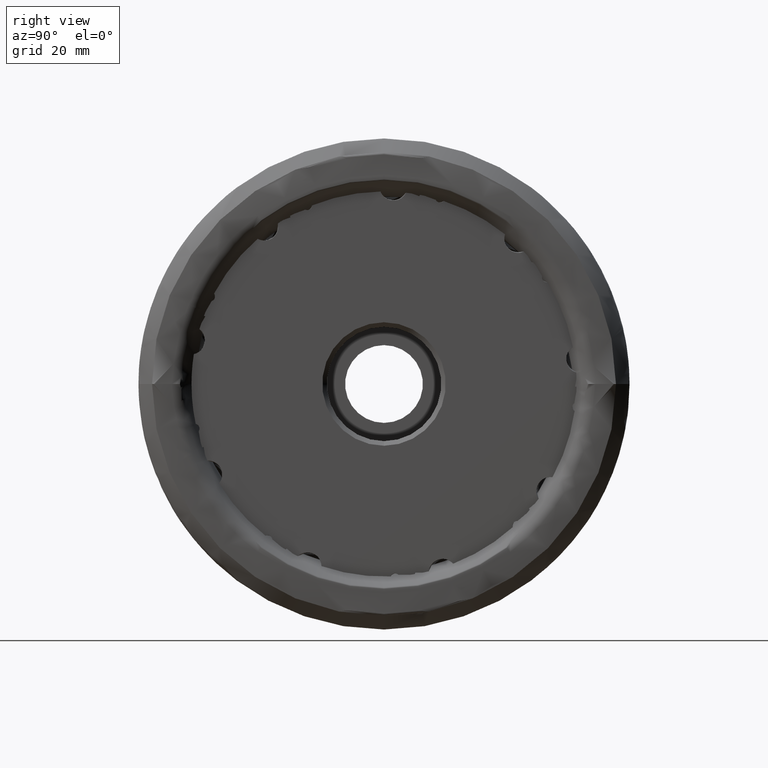
[diagram: clean part render]
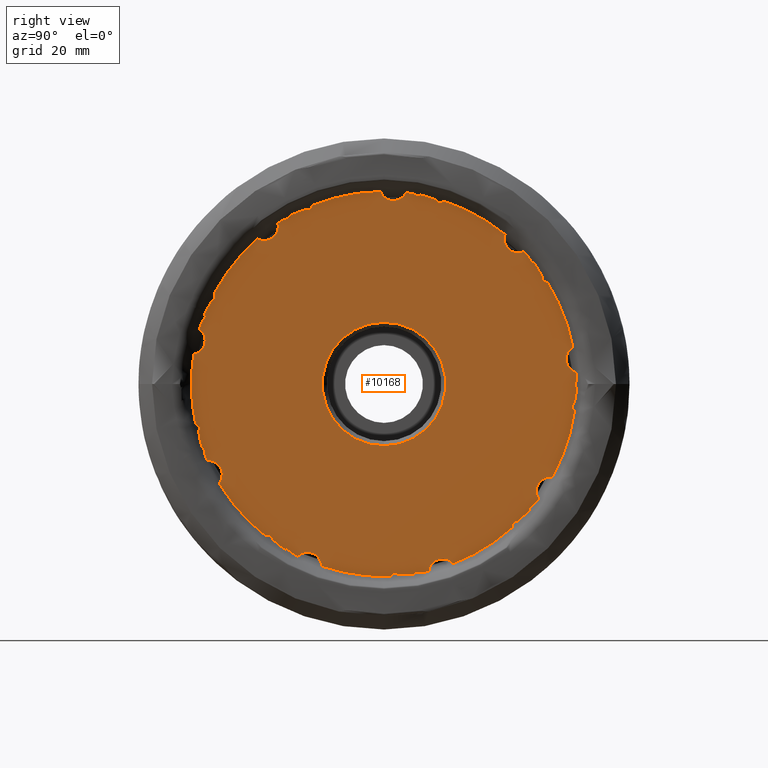
[diagram: same view with one face highlighted and labeled with its STEP entity id]
A machine part, right view. The second image highlights one B-rep face of the part: STEP entity #10168.
In plain terms, the highlighted planar face has unit normal (-1, 0, 0).
Its self-contained STEP definition (entity closure, byte-faithful):
#58 = CARTESIAN_POINT ( 'NONE',  ( -2.000000000000174500, 33.80282391461082600, -25.06373193778975100 ) ) ;
#110 = EDGE_CURVE ( 'NONE', #11343, #9593, #13274, .T. ) ;
#147 = CIRCLE ( 'NONE', #12850, 42.08113072686592200 ) ;
#186 = CARTESIAN_POINT ( 'NONE',  ( -1.999999999999998200, -2.225506086701896500E-015, 0.0000000000000000000 ) ) ;
#208 = CARTESIAN_POINT ( 'NONE',  ( -1.999999999999992200, 34.72131134795173300, -25.29057403848168700 ) ) ;
#212 = CARTESIAN_POINT ( 'NONE',  ( -1.999999999999993100, -16.44272710679563700, 37.75781978297396800 ) ) ;
#253 = AXIS2_PLACEMENT_3D ( 'NONE', #9820, #1645, #11186 ) ;
#259 = VERTEX_POINT ( 'NONE', #16211 ) ;
#269 = CARTESIAN_POINT ( 'NONE',  ( -1.999999999984755700, -37.14504883660652000, 19.77541175749989900 ) ) ;
#272 = CARTESIAN_POINT ( 'NONE',  ( -1.999999999999988000, -23.09905746324097800, 34.37552707122336700 ) ) ;
#304 = VERTEX_POINT ( 'NONE', #17643 ) ;
#347 = ORIENTED_EDGE ( 'NONE', *, *, #6846, .F. ) ;
#370 = ORIENTED_EDGE ( 'NONE', *, *, #7165, .F. ) ;
#435 = VERTEX_POINT ( 'NONE', #8789 ) ;
#451 = LINE ( 'NONE', #3659, #10947 ) ;
#476 = ORIENTED_EDGE ( 'NONE', *, *, #12536, .T. ) ;
#477 = VERTEX_POINT ( 'NONE', #1860 ) ;
#503 = LINE ( 'NONE', #8462, #961 ) ;
#515 = DIRECTION ( 'NONE',  ( 0.0000000000000000000, 0.7660444431189771300, 0.6427876096865404700 ) ) ;
#516 = DIRECTION ( 'NONE',  ( -1.236699284938157500E-016, 1.000000000000000000, -1.776356839400250500E-015 ) ) ;
#520 = CARTESIAN_POINT ( 'NONE',  ( -1.999999999999992700, 1.653273178848926700E-015, 13.49999999999999800 ) ) ;
#524 = VERTEX_POINT ( 'NONE', #4251 ) ;
#539 = DIRECTION ( 'NONE',  ( -1.236699284938157500E-016, 1.000000000000000000, 0.0000000000000000000 ) ) ;
#540 = EDGE_CURVE ( 'NONE', #16962, #12831, #1627, .T. ) ;
#543 = CARTESIAN_POINT ( 'NONE',  ( -1.999999999999991300, -25.21314977678311600, -32.73243151228509600 ) ) ;
#557 = LINE ( 'NONE', #1055, #7861 ) ;
#631 = CARTESIAN_POINT ( 'NONE',  ( -1.999999999999998200, -2.225506086701896500E-015, 0.0000000000000000000 ) ) ;
#690 = VERTEX_POINT ( 'NONE', #16309 ) ;
#717 = CARTESIAN_POINT ( 'NONE',  ( -1.999999999999998200, -2.225506086701896500E-015, 0.0000000000000000000 ) ) ;
#767 = DIRECTION ( 'NONE',  ( -1.236699284938157500E-016, 1.000000000000000000, -7.727152251391089500E-014 ) ) ;
#779 = ORIENTED_EDGE ( 'NONE', *, *, #9050, .F. ) ;
#812 = EDGE_CURVE ( 'NONE', #2190, #3810, #3178, .T. ) ;
#905 = EDGE_CURVE ( 'NONE', #3678, #10430, #15474, .T. ) ;
#939 = VERTEX_POINT ( 'NONE', #10562 ) ;
#958 = CARTESIAN_POINT ( 'NONE',  ( -1.999999999987449400, -23.19196300464737300, 35.11345063139542300 ) ) ;
#961 = VECTOR ( 'NONE', #16828, 1000.000000000000000 ) ;
#976 = VECTOR ( 'NONE', #515, 1000.000000000000200 ) ;
#1003 = VERTEX_POINT ( 'NONE', #2128 ) ;
#1055 = CARTESIAN_POINT ( 'NONE',  ( -1.999999999999992200, -18.87706094944759600, -38.58547870414682300 ) ) ;
#1064 = DIRECTION ( 'NONE',  ( -1.000000000000000000, -1.193693284822026100E-016, 0.0000000000000000000 ) ) ;
#1074 = CARTESIAN_POINT ( 'NONE',  ( -1.999999999999994000, -39.93233878044627300, 13.27516036721388200 ) ) ;
#1086 = CARTESIAN_POINT ( 'NONE',  ( -1.999999999999988000, 10.08867232349782700, -37.84135278247864400 ) ) ;
#1094 = LINE ( 'NONE', #14449, #4810 ) ;
#1132 = EDGE_CURVE ( 'NONE', #2653, #6702, #14298, .T. ) ;
#1176 = CIRCLE ( 'NONE', #2999, 42.08113072686592200 ) ;
#1183 = LINE ( 'NONE', #17493, #8022 ) ;
#1213 = DIRECTION ( 'NONE',  ( 0.0000000000000000000, -0.1736481776669404600, 0.9848077530122062400 ) ) ;
#1230 = CARTESIAN_POINT ( 'NONE',  ( -1.999999999999998200, -2.225506086701896500E-015, 0.0000000000000000000 ) ) ;
#1250 = DIRECTION ( 'NONE',  ( -1.236699284938157500E-016, 1.000000000000000000, 0.0000000000000000000 ) ) ;
#1267 = CARTESIAN_POINT ( 'NONE',  ( -1.999999999984755700, -37.14504883660652000, 19.77541175749989900 ) ) ;
#1315 = VERTEX_POINT ( 'NONE', #9077 ) ;
#1330 = CIRCLE ( 'NONE', #7123, 42.08113072686592200 ) ;
#1336 = DIRECTION ( 'NONE',  ( -1.236699284938157500E-016, 1.000000000000000000, 0.0000000000000000000 ) ) ;
#1372 = EDGE_CURVE ( 'NONE', #10640, #477, #1176, .T. ) ;
#1479 = AXIS2_PLACEMENT_3D ( 'NONE', #15843, #7722, #17222 ) ;
#1491 = CARTESIAN_POINT ( 'NONE',  ( -1.999999999999993600, -40.06745422894155700, -12.86159690175575100 ) ) ;
#1567 = ORIENTED_EDGE ( 'NONE', *, *, #13143, .F. ) ;
#1613 = EDGE_CURVE ( 'NONE', #16238, #2076, #16932, .T. ) ;
#1624 = ORIENTED_EDGE ( 'NONE', *, *, #16855, .F. ) ;
#1627 = LINE ( 'NONE', #7596, #15680 ) ;
#1645 = DIRECTION ( 'NONE',  ( 1.000000000000000000, -0.0000000000000000000, -0.0000000000000000000 ) ) ;
#1681 = CARTESIAN_POINT ( 'NONE',  ( -1.999999999999988000, 29.32358529761255600, 28.67203722557644200 ) ) ;
#1685 = CARTESIAN_POINT ( 'NONE',  ( -1.999999999999988000, -23.09905746324097800, 31.78128646541152200 ) ) ;
#1697 = CARTESIAN_POINT ( 'NONE',  ( -1.999999999986959800, 4.804416614470191000, 41.80597019860930900 ) ) ;
#1732 = VERTEX_POINT ( 'NONE', #11444 ) ;
#1753 = EDGE_CURVE ( 'NONE', #14994, #12203, #8753, .T. ) ;
#1765 = CARTESIAN_POINT ( 'NONE',  ( -1.999999999999988000, 3.462253966382804500, 39.00976912429983700 ) ) ;
#1785 = ORIENTED_EDGE ( 'NONE', *, *, #13038, .F. ) ;
#1812 = CIRCLE ( 'NONE', #10737, 13.49999999999999800 ) ;
#1835 = DIRECTION ( 'NONE',  ( 0.0000000000000000000, 1.000000000000000000, -0.0000000000000000000 ) ) ;
#1856 = AXIS2_PLACEMENT_3D ( 'NONE', #16877, #8729, #516 ) ;
#1860 = CARTESIAN_POINT ( 'NONE',  ( -2.000000000000003100, 41.30267919462586700, 8.056690052211209300 ) ) ;
#1901 = CARTESIAN_POINT ( 'NONE',  ( -1.999999999999986200, 3.118841394834857000, -41.69213243200000100 ) ) ;
#1916 = CARTESIAN_POINT ( 'NONE',  ( -1.999999999999992700, -39.06753655561161100, 14.77304175912615000 ) ) ;
#1950 = AXIS2_PLACEMENT_3D ( 'NONE', #16185, #5366, #5304 ) ;
#1971 = EDGE_CURVE ( 'NONE', #11353, #2653, #503, .T. ) ;
#2051 = DIRECTION ( 'NONE',  ( -1.236699284938157500E-016, 1.000000000000000000, 1.003641614261141500E-013 ) ) ;
#2064 = CARTESIAN_POINT ( 'NONE',  ( -1.999999999999865700, 31.86312196370089100, -27.48750665262150900 ) ) ;
#2076 = VERTEX_POINT ( 'NONE', #9282 ) ;
#2128 = CARTESIAN_POINT ( 'NONE',  ( -1.999999999999992700, 41.76415367340436500, -0.5202338754820961000 ) ) ;
#2139 = ORIENTED_EDGE ( 'NONE', *, *, #12107, .F. ) ;
#2149 = DIRECTION ( 'NONE',  ( -1.236699284938157500E-016, 1.000000000000000000, 0.0000000000000000000 ) ) ;
#2161 = VERTEX_POINT ( 'NONE', #7042 ) ;
#2163 = CARTESIAN_POINT ( 'NONE',  ( -1.999999999999998200, -2.225506086701896500E-015, 0.0000000000000000000 ) ) ;
#2171 = EDGE_CURVE ( 'NONE', #15157, #3419, #17245, .T. ) ;
#2190 = VERTEX_POINT ( 'NONE', #8859 ) ;
#2202 = LINE ( 'NONE', #16601, #16220 ) ;
#2262 = CARTESIAN_POINT ( 'NONE',  ( -2.000000000000000000, 15.10642580194220700, -39.27616914544994100 ) ) ;
#2276 = CARTESIAN_POINT ( 'NONE',  ( -1.999999999999996700, -13.67404134168032700, -39.79751445301072000 ) ) ;
#2277 = EDGE_CURVE ( 'NONE', #15850, #2076, #2494, .T. ) ;
#2280 = CIRCLE ( 'NONE', #10858, 42.08113072686592200 ) ;
#2286 = CARTESIAN_POINT ( 'NONE',  ( -1.999999999999991300, 1.725608130967820000, -41.28119754744685100 ) ) ;
#2312 = DIRECTION ( 'NONE',  ( -1.000000000000000000, -1.193693284822026100E-016, 0.0000000000000000000 ) ) ;
#2325 = EDGE_CURVE ( 'NONE', #259, #10121, #9281, .T. ) ;
#2332 = CARTESIAN_POINT ( 'NONE',  ( -1.999999999986740600, 1.446515466011287600, -42.05626179606329600 ) ) ;
#2409 = EDGE_CURVE ( 'NONE', #16219, #11404, #12764, .T. ) ;
#2425 = CARTESIAN_POINT ( 'NONE',  ( -1.999999999999993100, -42.08113072686592200, 0.0000000000000000000 ) ) ;
#2454 = AXIS2_PLACEMENT_3D ( 'NONE', #9255, #1064, #10622 ) ;
#2479 = DIRECTION ( 'NONE',  ( 0.0000000000000000000, -0.7660444431189859000, 0.6427876096865300400 ) ) ;
#2492 = VERTEX_POINT ( 'NONE', #4655 ) ;
#2493 = VECTOR ( 'NONE', #5125, 1000.000000000000200 ) ;
#2494 = CIRCLE ( 'NONE', #14130, 42.08113072686592200 ) ;
#2502 = DIRECTION ( 'NONE',  ( 0.0000000000000000000, -0.1736481776669274200, -0.9848077530122086900 ) ) ;
#2504 = VERTEX_POINT ( 'NONE', #1916 ) ;
#2512 = CARTESIAN_POINT ( 'NONE',  ( -1.999999999999987100, 7.873318066013322200, 41.33802639075754800 ) ) ;
#2554 = VERTEX_POINT ( 'NONE', #9848 ) ;
#2556 = ORIENTED_EDGE ( 'NONE', *, *, #5473, .T. ) ;
#2564 = EDGE_LOOP ( 'NONE', ( #3062, #16204 ) ) ;
#2642 = DIRECTION ( 'NONE',  ( -1.000000000000000000, -1.193693284822026100E-016, 0.0000000000000000000 ) ) ;
#2653 = VERTEX_POINT ( 'NONE', #17637 ) ;
#2654 = DIRECTION ( 'NONE',  ( -1.236699284938157500E-016, 1.000000000000000000, -8.792966355031239800E-014 ) ) ;
#2683 = CARTESIAN_POINT ( 'NONE',  ( -1.999999999999988000, -35.51457804060068200, -16.50648467290940500 ) ) ;
#2689 = ORIENTED_EDGE ( 'NONE', *, *, #13543, .F. ) ;
#2801 = EDGE_CURVE ( 'NONE', #1732, #2190, #5493, .T. ) ;
#2808 = EDGE_CURVE ( 'NONE', #2554, #4970, #1812, .T. ) ;
#2862 = EDGE_CURVE ( 'NONE', #16431, #6844, #11587, .T. ) ;
#2914 = EDGE_CURVE ( 'NONE', #6186, #15906, #12132, .T. ) ;
#2943 = ORIENTED_EDGE ( 'NONE', *, *, #17170, .T. ) ;
#2982 = CARTESIAN_POINT ( 'NONE',  ( -1.999999999985201200, -15.74336859649500300, 39.02522144059422300 ) ) ;
#2999 = AXIS2_PLACEMENT_3D ( 'NONE', #6638, #6755, #7561 ) ;
#3049 = CARTESIAN_POINT ( 'NONE',  ( -1.999999999985201200, -15.74336859649500300, 39.02522144059422300 ) ) ;
#3062 = ORIENTED_EDGE ( 'NONE', *, *, #2808, .F. ) ;
#3063 = CARTESIAN_POINT ( 'NONE',  ( -1.999999999999991300, 11.32879686581721600, 40.24449577205076900 ) ) ;
#3112 = CARTESIAN_POINT ( 'NONE',  ( -1.999999999999994900, -27.62863785294523200, 31.74082440079937900 ) ) ;
#3158 = EDGE_CURVE ( 'NONE', #6186, #15322, #10131, .T. ) ;
#3178 = LINE ( 'NONE', #12863, #13969 ) ;
#3250 = CARTESIAN_POINT ( 'NONE',  ( -2.000000000000003100, 42.06449633417405900, 1.183093996196733300 ) ) ;
#3258 = ORIENTED_EDGE ( 'NONE', *, *, #4473, .T. ) ;
#3286 = AXIS2_PLACEMENT_3D ( 'NONE', #12727, #4654, #14092 ) ;
#3357 = CARTESIAN_POINT ( 'NONE',  ( -1.999999999999988000, 30.16552239726942700, 28.76168677350544900 ) ) ;
#3419 = VERTEX_POINT ( 'NONE', #2276 ) ;
#3429 = VERTEX_POINT ( 'NONE', #2262 ) ;
#3469 = CARTESIAN_POINT ( 'NONE',  ( -1.999999999999988000, -23.09905746324097800, 34.37552707122336700 ) ) ;
#3520 = LINE ( 'NONE', #9539, #7108 ) ;
#3543 = CARTESIAN_POINT ( 'NONE',  ( -1.999999999999992200, -2.338749118892660600, 43.51660555656336300 ) ) ;
#3548 = CARTESIAN_POINT ( 'NONE',  ( -1.999999999999988000, -23.09905746324098200, 34.62488721186028300 ) ) ;
#3561 = DIRECTION ( 'NONE',  ( -1.236699284938157500E-016, 1.000000000000000000, 0.0000000000000000000 ) ) ;
#3634 = EDGE_CURVE ( 'NONE', #10923, #304, #14854, .T. ) ;
#3659 = CARTESIAN_POINT ( 'NONE',  ( -1.999999999999992200, 26.18034910099832000, 34.83897282579526000 ) ) ;
#3660 = EDGE_CURVE ( 'NONE', #13462, #9956, #9054, .T. ) ;
#3678 = VERTEX_POINT ( 'NONE', #8717 ) ;
#3697 = DIRECTION ( 'NONE',  ( -1.000000000000000000, -1.193693284822026100E-016, 0.0000000000000000000 ) ) ;
#3705 = ORIENTED_EDGE ( 'NONE', *, *, #2277, .F. ) ;
#3739 = ORIENTED_EDGE ( 'NONE', *, *, #16862, .T. ) ;
#3751 = CARTESIAN_POINT ( 'NONE',  ( -1.999999999987942300, 30.55275630453340000, 28.93701168828840400 ) ) ;
#3786 = DIRECTION ( 'NONE',  ( 0.0000000000000000000, 0.3420201433256757100, -0.9396926207859057600 ) ) ;
#3810 = VERTEX_POINT ( 'NONE', #15979 ) ;
#3830 = VECTOR ( 'NONE', #11118, 1000.000000000000200 ) ;
#3910 = CARTESIAN_POINT ( 'NONE',  ( -2.000000000000002700, 36.81842842361508200, -20.37706778873526400 ) ) ;
#3923 = LINE ( 'NONE', #3543, #10690 ) ;
#3928 = CARTESIAN_POINT ( 'NONE',  ( -1.999999999999996700, -19.62384075557560000, 37.22534670424695200 ) ) ;
#3961 = ORIENTED_EDGE ( 'NONE', *, *, #2409, .T. ) ;
#4144 = CARTESIAN_POINT ( 'NONE',  ( -1.999999999987228700, 42.00512176364304700, 2.528103809955530900 ) ) ;
#4155 = VERTEX_POINT ( 'NONE', #3751 ) ;
#4157 = AXIS2_PLACEMENT_3D ( 'NONE', #1230, #10777, #2654 ) ;
#4164 = EDGE_CURVE ( 'NONE', #5022, #3678, #15191, .T. ) ;
#4194 = CARTESIAN_POINT ( 'NONE',  ( -1.999999999987185600, 35.69853337059361600, 22.28085003856466200 ) ) ;
#4211 = ORIENTED_EDGE ( 'NONE', *, *, #4476, .F. ) ;
#4248 = VERTEX_POINT ( 'NONE', #10897 ) ;
#4251 = CARTESIAN_POINT ( 'NONE',  ( -2.000000000000002700, 33.25216585687818600, 25.78982413817985300 ) ) ;
#4273 = EDGE_CURVE ( 'NONE', #1315, #4451, #13472, .T. ) ;
#4275 = CARTESIAN_POINT ( 'NONE',  ( -1.999999999999993100, 41.60031638329058300, -4.168303633816223400 ) ) ;
#4311 = CARTESIAN_POINT ( 'NONE',  ( -1.999999999999994000, -21.53693659870005600, -36.15220498386167900 ) ) ;
#4314 = ORIENTED_EDGE ( 'NONE', *, *, #3634, .F. ) ;
#4323 = EDGE_CURVE ( 'NONE', #4970, #2554, #16246, .T. ) ;
#4451 = VERTEX_POINT ( 'NONE', #3250 ) ;
#4473 = EDGE_CURVE ( 'NONE', #14765, #690, #8610, .T. ) ;
#4476 = EDGE_CURVE ( 'NONE', #11534, #15850, #14642, .T. ) ;
#4491 = ORIENTED_EDGE ( 'NONE', *, *, #14963, .F. ) ;
#4493 = CARTESIAN_POINT ( 'NONE',  ( -2.000000000000001300, 26.46094734232286100, 32.72063307759182000 ) ) ;
#4535 = CARTESIAN_POINT ( 'NONE',  ( -1.999999999999993100, -40.03944325707999500, -9.636348537446467700 ) ) ;
#4654 = DIRECTION ( 'NONE',  ( -1.000000000000000000, -1.193693284822026100E-016, 0.0000000000000000000 ) ) ;
#4655 = CARTESIAN_POINT ( 'NONE',  ( -1.999999999999996700, -22.05683762285834200, 35.83737542469370400 ) ) ;
#4769 = VERTEX_POINT ( 'NONE', #16094 ) ;
#4784 = ORIENTED_EDGE ( 'NONE', *, *, #9206, .F. ) ;
#4788 = ORIENTED_EDGE ( 'NONE', *, *, #110, .T. ) ;
#4810 = VECTOR ( 'NONE', #5004, 1000.000000000000100 ) ;
#4875 = EDGE_CURVE ( 'NONE', #2504, #15322, #12848, .T. ) ;
#4897 = EDGE_CURVE ( 'NONE', #12027, #14499, #12023, .T. ) ;
#4920 = DIRECTION ( 'NONE',  ( -1.000000000000000000, -1.193693284822026100E-016, 0.0000000000000000000 ) ) ;
#4932 = CARTESIAN_POINT ( 'NONE',  ( -1.999999999999991300, -40.51715413399996600, -10.31122200591433100 ) ) ;
#4945 = CARTESIAN_POINT ( 'NONE',  ( -1.999999999999988000, -34.08227710352380800, -19.28854223289631200 ) ) ;
#4957 = CARTESIAN_POINT ( 'NONE',  ( -1.999999999999989600, 29.18835726818266000, -29.93327376613675000 ) ) ;
#4970 = VERTEX_POINT ( 'NONE', #520 ) ;
#4977 = DIRECTION ( 'NONE',  ( -1.000000000000000000, -1.193693284822026100E-016, 0.0000000000000000000 ) ) ;
#4981 = CARTESIAN_POINT ( 'NONE',  ( -1.999999999986971300, 28.14133912686644500, -31.28716342845898900 ) ) ;
#4992 = AXIS2_PLACEMENT_3D ( 'NONE', #16149, #8013, #17530 ) ;
#5004 = DIRECTION ( 'NONE',  ( 0.0000000000000000000, 0.9848077530122062400, 0.1736481776669405200 ) ) ;
#5021 = CARTESIAN_POINT ( 'NONE',  ( -1.999999999999989600, 29.18835726818266000, -29.93327376613675000 ) ) ;
#5022 = VERTEX_POINT ( 'NONE', #2064 ) ;
#5043 = DIRECTION ( 'NONE',  ( 0.0000000000000000000, 0.9396926207859104300, -0.3420201433256630500 ) ) ;
#5090 = ORIENTED_EDGE ( 'NONE', *, *, #8045, .F. ) ;
#5113 =( BOUNDED_CURVE ( )  B_SPLINE_CURVE ( 3, ( #5256, #13337, #6607, #16073 ),
 .UNSPECIFIED., .F., .F. ) 
 B_SPLINE_CURVE_WITH_KNOTS ( ( 4, 4 ),
 ( 0.7753974966107509700, 2.799063243515080800 ),
 .UNSPECIFIED. ) 
 CURVE ( )  GEOMETRIC_REPRESENTATION_ITEM ( )  RATIONAL_B_SPLINE_CURVE ( ( 1.000000000000000000, 0.6868717955093854900, 0.6868717955093854900, 1.000000000000000000 ) ) 
 REPRESENTATION_ITEM ( '' )  );
#5125 = DIRECTION ( 'NONE',  ( 0.0000000000000000000, 0.8660254037844432600, -0.4999999999999919000 ) ) ;
#5131 = EDGE_CURVE ( 'NONE', #15731, #3810, #7119, .T. ) ;
#5150 =( BOUNDED_CURVE ( )  B_SPLINE_CURVE ( 3, ( #1681, #9854, #12570, #4493 ),
 .UNSPECIFIED., .F., .F. ) 
 B_SPLINE_CURVE_WITH_KNOTS ( ( 4, 4 ),
 ( 0.5193744731604529300, 2.436711095604965600 ),
 .UNSPECIFIED. ) 
 CURVE ( )  GEOMETRIC_REPRESENTATION_ITEM ( )  RATIONAL_B_SPLINE_CURVE ( ( 1.000000000000000000, 0.7164069236197915200, 0.7164069236197915200, 1.000000000000000000 ) ) 
 REPRESENTATION_ITEM ( '' )  );
#5158 = VERTEX_POINT ( 'NONE', #958 ) ;
#5216 = ORIENTED_EDGE ( 'NONE', *, *, #2801, .T. ) ;
#5256 = CARTESIAN_POINT ( 'NONE',  ( -1.999999999999991300, 34.54702512663955400, 23.54706209430164400 ) ) ;
#5271 = CARTESIAN_POINT ( 'NONE',  ( -2.000000000000000000, 15.10642580194220700, -39.27616914544994100 ) ) ;
#5285 = VECTOR ( 'NONE', #14627, 999.9999999999998900 ) ;
#5304 = DIRECTION ( 'NONE',  ( -1.236699284938157500E-016, 1.000000000000000000, 0.0000000000000000000 ) ) ;
#5327 = CARTESIAN_POINT ( 'NONE',  ( -1.999999999999992200, 6.755030588383002400, 11.68262971641846600 ) ) ;
#5336 =( BOUNDED_CURVE ( )  B_SPLINE_CURVE ( 3, ( #11995, #1086, #13356, #5271 ),
 .UNSPECIFIED., .F., .F. ) 
 B_SPLINE_CURVE_WITH_KNOTS ( ( 4, 4 ),
 ( 0.09749807417291342400, 2.436711095604956700 ),
 .UNSPECIFIED. ) 
 CURVE ( )  GEOMETRIC_REPRESENTATION_ITEM ( )  RATIONAL_B_SPLINE_CURVE ( ( 1.000000000000000000, 0.5936759730586465000, 0.5936759730586465000, 1.000000000000000000 ) ) 
 REPRESENTATION_ITEM ( '' )  );
#5366 = DIRECTION ( 'NONE',  ( -1.000000000000000000, -1.193693284822026100E-016, 0.0000000000000000000 ) ) ;
#5376 = DIRECTION ( 'NONE',  ( 0.0000000000000000000, 0.6427876096865298200, 0.7660444431189860100 ) ) ;
#5473 = EDGE_CURVE ( 'NONE', #1003, #4451, #6491, .T. ) ;
#5478 = VECTOR ( 'NONE', #8437, 1000.000000000000000 ) ;
#5489 = CARTESIAN_POINT ( 'NONE',  ( -1.999999999987498700, 9.783809079397997300, -40.92796895950571200 ) ) ;
#5493 = LINE ( 'NONE', #14876, #9488 ) ;
#5534 = AXIS2_PLACEMENT_3D ( 'NONE', #631, #10210, #2051 ) ;
#5581 = ORIENTED_EDGE ( 'NONE', *, *, #1132, .F. ) ;
#5684 = VECTOR ( 'NONE', #3786, 1000.000000000000200 ) ;
#5721 = VECTOR ( 'NONE', #5376, 1000.000000000000100 ) ;
#5770 = CIRCLE ( 'NONE', #15612, 42.08113072686592200 ) ;
#5802 = EDGE_CURVE ( 'NONE', #6844, #3429, #7542, .T. ) ;
#5834 = EDGE_CURVE ( 'NONE', #11814, #12203, #15153, .T. ) ;
#5866 = ORIENTED_EDGE ( 'NONE', *, *, #15312, .F. ) ;
#5931 = CARTESIAN_POINT ( 'NONE',  ( -1.999999999999994000, -36.05627257148966400, -21.69716044790242300 ) ) ;
#5951 = CARTESIAN_POINT ( 'NONE',  ( -1.999999999999994900, -27.62863785294523200, 31.74082440079937900 ) ) ;
#5993 = ORIENTED_EDGE ( 'NONE', *, *, #16637, .F. ) ;
#6035 = AXIS2_PLACEMENT_3D ( 'NONE', #2163, #11660, #3561 ) ;
#6053 = VERTEX_POINT ( 'NONE', #6132 ) ;
#6057 = CARTESIAN_POINT ( 'NONE',  ( -1.999999999987333900, -38.60724052908555100, -16.74223826080961800 ) ) ;
#6065 = CARTESIAN_POINT ( 'NONE',  ( -1.999999999999989600, -24.41001502921682900, -33.94277897649175200 ) ) ;
#6077 = DIRECTION ( 'NONE',  ( 0.0000000000000000000, 0.7660444431189857900, -0.6427876096865299300 ) ) ;
#6112 = CARTESIAN_POINT ( 'NONE',  ( -1.999999999999988000, 29.32358529761255600, 28.67203722557644200 ) ) ;
#6128 = ORIENTED_EDGE ( 'NONE', *, *, #14080, .T. ) ;
#6132 = CARTESIAN_POINT ( 'NONE',  ( -1.999999999999991300, -17.19030135407362500, 38.11108261030767600 ) ) ;
#6136 = CARTESIAN_POINT ( 'NONE',  ( -1.999999999986740600, 41.66851745411416600, -5.878453574589616300 ) ) ;
#6152 = LINE ( 'NONE', #13199, #2493 ) ;
#6161 = LINE ( 'NONE', #12106, #5721 ) ;
#6186 = VERTEX_POINT ( 'NONE', #7688 ) ;
#6223 = AXIS2_PLACEMENT_3D ( 'NONE', #13589, #16332, #8206 ) ;
#6235 = CARTESIAN_POINT ( 'NONE',  ( -1.999999999999988000, -23.13018587680876300, 34.87213177245683900 ) ) ;
#6356 = LINE ( 'NONE', #5327, #9096 ) ;
#6428 = ORIENTED_EDGE ( 'NONE', *, *, #9172, .T. ) ;
#6457 = CARTESIAN_POINT ( 'NONE',  ( -1.999999999999987100, -20.54025961949640300, 36.72763670610000700 ) ) ;
#6462 = ORIENTED_EDGE ( 'NONE', *, *, #6747, .F. ) ;
#6491 = LINE ( 'NONE', #7244, #14531 ) ;
#6537 = VERTEX_POINT ( 'NONE', #16710 ) ;
#6607 = CARTESIAN_POINT ( 'NONE',  ( -1.999999999999993100, 34.88776170924860100, 22.13501925211901200 ) ) ;
#6638 = CARTESIAN_POINT ( 'NONE',  ( -1.999999999999998200, -2.225506086701896500E-015, 0.0000000000000000000 ) ) ;
#6667 = AXIS2_PLACEMENT_3D ( 'NONE', #7211, #16702, #8555 ) ;
#6669 = VERTEX_POINT ( 'NONE', #17005 ) ;
#6702 = VERTEX_POINT ( 'NONE', #8978 ) ;
#6747 = EDGE_CURVE ( 'NONE', #8907, #17182, #12781, .T. ) ;
#6755 = DIRECTION ( 'NONE',  ( -1.000000000000000000, -1.193693284822026100E-016, 0.0000000000000000000 ) ) ;
#6800 = EDGE_CURVE ( 'NONE', #1315, #477, #12441, .T. ) ;
#6844 = VERTEX_POINT ( 'NONE', #9687 ) ;
#6846 = EDGE_CURVE ( 'NONE', #17182, #14499, #14059, .T. ) ;
#6898 = AXIS2_PLACEMENT_3D ( 'NONE', #717, #10297, #2149 ) ;
#6923 = CARTESIAN_POINT ( 'NONE',  ( -1.999999999987333900, -38.60724052908555100, -16.74223826080961800 ) ) ;
#6931 = CARTESIAN_POINT ( 'NONE',  ( -1.999999999999998200, -2.225506086701896500E-015, 0.0000000000000000000 ) ) ;
#6985 = VECTOR ( 'NONE', #1213, 1000.000000000000100 ) ;
#7030 = DIRECTION ( 'NONE',  ( -1.000000000000000000, -1.193693284822026100E-016, 0.0000000000000000000 ) ) ;
#7042 = CARTESIAN_POINT ( 'NONE',  ( -1.999999999999991300, 34.54702512663955400, 23.54706209430164400 ) ) ;
#7061 = CARTESIAN_POINT ( 'NONE',  ( -1.999999999999998200, -2.225506086701896500E-015, 0.0000000000000000000 ) ) ;
#7094 = CARTESIAN_POINT ( 'NONE',  ( -1.999999999986740600, 41.66851745411416600, -5.878453574589616300 ) ) ;
#7108 = VECTOR ( 'NONE', #13493, 1000.000000000000100 ) ;
#7114 = DIRECTION ( 'NONE',  ( 0.0000000000000000000, -0.9396926207859057600, -0.3420201433256757100 ) ) ;
#7117 = CARTESIAN_POINT ( 'NONE',  ( -2.000000000000013800, -25.92514885760801500, -33.14676786599931500 ) ) ;
#7119 = CIRCLE ( 'NONE', #8770, 42.08113072686592200 ) ;
#7123 = AXIS2_PLACEMENT_3D ( 'NONE', #16898, #8747, #539 ) ;
#7157 = CARTESIAN_POINT ( 'NONE',  ( -1.999999999999993100, 12.49745987478382300, 39.38182945282127900 ) ) ;
#7165 = EDGE_CURVE ( 'NONE', #2161, #10640, #5113, .T. ) ;
#7198 = AXIS2_PLACEMENT_3D ( 'NONE', #10769, #2642, #12142 ) ;
#7211 = CARTESIAN_POINT ( 'NONE',  ( -1.999999999999998200, -2.225506086701896500E-015, 0.0000000000000000000 ) ) ;
#7239 = CARTESIAN_POINT ( 'NONE',  ( -1.999999999987936800, -18.81315875899495500, -37.64155444135107600 ) ) ;
#7244 = CARTESIAN_POINT ( 'NONE',  ( -1.999999999999992200, 41.00085038885833900, -4.849141915982521300 ) ) ;
#7472 = ORIENTED_EDGE ( 'NONE', *, *, #4273, .F. ) ;
#7542 = CIRCLE ( 'NONE', #7198, 42.08113072686592200 ) ;
#7561 = DIRECTION ( 'NONE',  ( -1.236699284938157500E-016, 1.000000000000000000, -1.776356839400250500E-015 ) ) ;
#7596 = CARTESIAN_POINT ( 'NONE',  ( -1.999999999999992200, -4.754270767794447600, 6.644011207712705600 ) ) ;
#7615 = VECTOR ( 'NONE', #13875, 1000.000000000000100 ) ;
#7619 = CARTESIAN_POINT ( 'NONE',  ( -2.000000000000001300, 32.98375183124238700, -26.13223446983808200 ) ) ;
#7629 =( BOUNDED_CURVE ( )  B_SPLINE_CURVE ( 3, ( #14257, #6235, #3548, #13010 ),
 .UNSPECIFIED., .F., .F. ) 
 B_SPLINE_CURVE_WITH_KNOTS ( ( 4, 4 ),
 ( 0.09749807417289919900, 0.3459345134304900900 ),
 .UNSPECIFIED. ) 
 CURVE ( )  GEOMETRIC_REPRESENTATION_ITEM ( )  RATIONAL_B_SPLINE_CURVE ( ( 1.000000000000000000, 0.9948632215152027900, 0.9948632215152027900, 1.000000000000000000 ) ) 
 REPRESENTATION_ITEM ( '' )  );
#7638 = CARTESIAN_POINT ( 'NONE',  ( -1.999999999999988000, -39.73644002971419600, -13.85051973813643400 ) ) ;
#7662 = DIRECTION ( 'NONE',  ( -1.000000000000000000, -1.193693284822026100E-016, 0.0000000000000000000 ) ) ;
#7676 = ORIENTED_EDGE ( 'NONE', *, *, #16963, .T. ) ;
#7688 = CARTESIAN_POINT ( 'NONE',  ( -1.999999999987575900, -40.33656538393197600, 11.99095727121692400 ) ) ;
#7722 = DIRECTION ( 'NONE',  ( -1.000000000000000000, -1.193693284822026100E-016, 0.0000000000000000000 ) ) ;
#7804 =( BOUNDED_CURVE ( )  B_SPLINE_CURVE ( 3, ( #11106, #212, #11164, #3049 ),
 .UNSPECIFIED., .F., .F. ) 
 B_SPLINE_CURVE_WITH_KNOTS ( ( 4, 4 ),
 ( 0.7753974966107588500, 2.799063243516799000 ),
 .UNSPECIFIED. ) 
 CURVE ( )  GEOMETRIC_REPRESENTATION_ITEM ( )  RATIONAL_B_SPLINE_CURVE ( ( 1.000000000000000000, 0.6868717955089019800, 0.6868717955089019800, 1.000000000000000000 ) ) 
 REPRESENTATION_ITEM ( '' )  );
#7810 = DIRECTION ( 'NONE',  ( -1.000000000000000000, -1.193693284822026100E-016, 0.0000000000000000000 ) ) ;
#7828 = ORIENTED_EDGE ( 'NONE', *, *, #540, .T. ) ;
#7861 = VECTOR ( 'NONE', #2479, 999.9999999999998900 ) ;
#7866 = ORIENTED_EDGE ( 'NONE', *, *, #14438, .T. ) ;
#7885 = ORIENTED_EDGE ( 'NONE', *, *, #2171, .T. ) ;
#8013 = DIRECTION ( 'NONE',  ( -1.000000000000000000, -1.193693284822026100E-016, 0.0000000000000000000 ) ) ;
#8021 = CARTESIAN_POINT ( 'NONE',  ( -1.999999999999992200, -40.65166044895008200, -9.548398787313940900 ) ) ;
#8022 = VECTOR ( 'NONE', #13375, 1000.000000000000000 ) ;
#8027 = ORIENTED_EDGE ( 'NONE', *, *, #4897, .T. ) ;
#8045 = EDGE_CURVE ( 'NONE', #6702, #3419, #147, .T. ) ;
#8060 = CIRCLE ( 'NONE', #8086, 42.08113072686592200 ) ;
#8066 = EDGE_CURVE ( 'NONE', #4155, #690, #14246, .T. ) ;
#8073 = CARTESIAN_POINT ( 'NONE',  ( -1.999999999999993600, -36.86611845515535900, 18.35498677532976700 ) ) ;
#8086 = AXIS2_PLACEMENT_3D ( 'NONE', #13059, #4977, #14420 ) ;
#8120 = CIRCLE ( 'NONE', #1479, 42.08113072686592200 ) ;
#8166 = DIRECTION ( 'NONE',  ( -1.236699284938157500E-016, 1.000000000000000000, 0.0000000000000000000 ) ) ;
#8185 = DIRECTION ( 'NONE',  ( -1.000000000000000000, -1.193693284822026100E-016, 0.0000000000000000000 ) ) ;
#8193 = CARTESIAN_POINT ( 'NONE',  ( -1.999999999999988000, 38.62393427280024100, 6.468475502157332400 ) ) ;
#8200 = EDGE_CURVE ( 'NONE', #8742, #10652, #9370, .T. ) ;
#8204 = ORIENTED_EDGE ( 'NONE', *, *, #11843, .F. ) ;
#8206 = DIRECTION ( 'NONE',  ( 0.0000000000000000000, 0.0000000000000000000, 1.000000000000000000 ) ) ;
#8224 = CARTESIAN_POINT ( 'NONE',  ( -1.999999999999998200, -2.225506086701896500E-015, 0.0000000000000000000 ) ) ;
#8255 = CARTESIAN_POINT ( 'NONE',  ( -2.000000000000000000, 6.139302992909807500, 41.63088423289646300 ) ) ;
#8276 = ORIENTED_EDGE ( 'NONE', *, *, #5802, .F. ) ;
#8284 = DIRECTION ( 'NONE',  ( -1.236699284938157500E-016, 1.000000000000000000, 4.263256414560601100E-014 ) ) ;
#8388 = CARTESIAN_POINT ( 'NONE',  ( -1.999999999999987600, -16.59558133048997400, -35.47303158685495800 ) ) ;
#8404 = DIRECTION ( 'NONE',  ( -1.236699284938157500E-016, 1.000000000000000000, 0.0000000000000000000 ) ) ;
#8406 = VERTEX_POINT ( 'NONE', #14222 ) ;
#8437 = DIRECTION ( 'NONE',  ( 0.0000000000000000000, 0.1736481776669404600, -0.9848077530122062400 ) ) ;
#8462 = CARTESIAN_POINT ( 'NONE',  ( -1.999999999999992200, 13.49999999999999800, -41.69213243200000100 ) ) ;
#8488 = DIRECTION ( 'NONE',  ( 0.0000000000000000000, -0.4999999999999919500, -0.8660254037844432600 ) ) ;
#8523 = CARTESIAN_POINT ( 'NONE',  ( -2.000000000000174500, 33.80282391461082600, -25.06373193778975100 ) ) ;
#8548 = ORIENTED_EDGE ( 'NONE', *, *, #13374, .F. ) ;
#8555 = DIRECTION ( 'NONE',  ( -1.236699284938157500E-016, 1.000000000000000000, 7.105427357601001900E-015 ) ) ;
#8560 = ORIENTED_EDGE ( 'NONE', *, *, #3158, .F. ) ;
#8573 = LINE ( 'NONE', #16788, #9426 ) ;
#8610 = LINE ( 'NONE', #12715, #12625 ) ;
#8687 = VERTEX_POINT ( 'NONE', #6136 ) ;
#8702 = DIRECTION ( 'NONE',  ( 0.0000000000000000000, 0.0000000000000000000, -1.000000000000000000 ) ) ;
#8709 = CARTESIAN_POINT ( 'NONE',  ( -1.999999999999993600, -41.56737314426539600, 6.555536067857728400 ) ) ;
#8717 = CARTESIAN_POINT ( 'NONE',  ( -1.999999999999991800, 31.65879795377932000, -27.24400277974425700 ) ) ;
#8723 = DIRECTION ( 'NONE',  ( 1.000000000000000000, -0.0000000000000000000, -0.0000000000000000000 ) ) ;
#8729 = DIRECTION ( 'NONE',  ( -1.000000000000000000, -1.193693284822026100E-016, 0.0000000000000000000 ) ) ;
#8742 = VERTEX_POINT ( 'NONE', #7638 ) ;
#8747 = DIRECTION ( 'NONE',  ( -1.000000000000000000, -1.193693284822026100E-016, 0.0000000000000000000 ) ) ;
#8753 =( BOUNDED_CURVE ( )  B_SPLINE_CURVE ( 3, ( #16938, #1765, #16644, #16850 ),
 .UNSPECIFIED., .F., .F. ) 
 B_SPLINE_CURVE_WITH_KNOTS ( ( 4, 4 ),
 ( 0.09749807417277239800, 2.436711095604968200 ),
 .UNSPECIFIED. ) 
 CURVE ( )  GEOMETRIC_REPRESENTATION_ITEM ( )  RATIONAL_B_SPLINE_CURVE ( ( 1.000000000000000000, 0.5936759730585996500, 0.5936759730585996500, 1.000000000000000000 ) ) 
 REPRESENTATION_ITEM ( '' )  );
#8760 = CARTESIAN_POINT ( 'NONE',  ( -1.999999999999992700, 0.0000000000000000000, 0.0000000000000000000 ) ) ;
#8770 = AXIS2_PLACEMENT_3D ( 'NONE', #10455, #2312, #11812 ) ;
#8789 = CARTESIAN_POINT ( 'NONE',  ( -1.999999999999990900, -21.33261258877858100, -35.90870111098451600 ) ) ;
#8823 = CARTESIAN_POINT ( 'NONE',  ( -1.999999999999987600, -13.71010302777425400, -36.68354602542471100 ) ) ;
#8859 = CARTESIAN_POINT ( 'NONE',  ( -1.999999999999990900, 6.739938823233821100, -41.21999999999999900 ) ) ;
#8907 = VERTEX_POINT ( 'NONE', #13418 ) ;
#8958 = CARTESIAN_POINT ( 'NONE',  ( -1.999999999999992700, 42.07719621819664000, -0.5754317222386121600 ) ) ;
#8971 = DIRECTION ( 'NONE',  ( -1.000000000000000000, -1.193693284822026100E-016, 0.0000000000000000000 ) ) ;
#8978 = CARTESIAN_POINT ( 'NONE',  ( -1.999999999986740600, 1.446515466011287600, -42.05626179606329600 ) ) ;
#9050 = EDGE_CURVE ( 'NONE', #12440, #8687, #10716, .T. ) ;
#9054 = LINE ( 'NONE', #14691, #5478 ) ;
#9077 = CARTESIAN_POINT ( 'NONE',  ( -1.999999999987228700, 42.00512176364304700, 2.528103809955530900 ) ) ;
#9096 = VECTOR ( 'NONE', #16150, 1000.000000000000000 ) ;
#9134 = CARTESIAN_POINT ( 'NONE',  ( -1.999999999999991300, -40.51715413399996600, -10.31122200591433100 ) ) ;
#9172 = EDGE_CURVE ( 'NONE', #4155, #9437, #10080, .T. ) ;
#9197 = ORIENTED_EDGE ( 'NONE', *, *, #11666, .F. ) ;
#9206 = EDGE_CURVE ( 'NONE', #10849, #10723, #8060, .T. ) ;
#9240 = VECTOR ( 'NONE', #8488, 1000.000000000000000 ) ;
#9255 = CARTESIAN_POINT ( 'NONE',  ( -1.999999999999998200, -2.225506086701896500E-015, 0.0000000000000000000 ) ) ;
#9281 = CIRCLE ( 'NONE', #1950, 42.08113072686592200 ) ;
#9282 = CARTESIAN_POINT ( 'NONE',  ( -1.999999999999994000, -36.05627257148966400, -21.69716044790242300 ) ) ;
#9322 = VERTEX_POINT ( 'NONE', #3928 ) ;
#9342 = ORIENTED_EDGE ( 'NONE', *, *, #1753, .T. ) ;
#9351 = EDGE_CURVE ( 'NONE', #16962, #13004, #12732, .T. ) ;
#9370 = CIRCLE ( 'NONE', #16488, 42.08113072686592200 ) ;
#9426 = VECTOR ( 'NONE', #6077, 1000.000000000000200 ) ;
#9432 = DIRECTION ( 'NONE',  ( -1.000000000000000000, -1.193693284822026100E-016, 0.0000000000000000000 ) ) ;
#9437 = VERTEX_POINT ( 'NONE', #15044 ) ;
#9450 = CARTESIAN_POINT ( 'NONE',  ( -1.999999999999991300, -37.66586652147469700, 18.14507033769816500 ) ) ;
#9488 = VECTOR ( 'NONE', #15800, 1000.000000000000000 ) ;
#9522 = DIRECTION ( 'NONE',  ( -1.000000000000000000, -1.193693284822026100E-016, 0.0000000000000000000 ) ) ;
#9539 = CARTESIAN_POINT ( 'NONE',  ( -1.999999999999992200, 39.48144582405704700, 15.00039474045517500 ) ) ;
#9563 = EDGE_CURVE ( 'NONE', #4769, #11534, #557, .T. ) ;
#9572 = ORIENTED_EDGE ( 'NONE', *, *, #14628, .F. ) ;
#9593 = VERTEX_POINT ( 'NONE', #10608 ) ;
#9620 = EDGE_LOOP ( 'NONE', ( #8560, #11322, #17697, #9197, #4314, #15287, #15511, #6128, #17479, #1624, #11696, #3705, #4211, #17256, #17024, #14169, #15303, #2689, #7885, #5090, #5581, #13776, #16655, #5216, #13288, #15396, #7676, #8276, #17299, #8204, #2139, #9984, #14946, #16722, #3961, #14675, #779, #5866, #4784, #16376, #2556, #7472, #16504, #13219, #370, #10222, #12054, #15131, #3258, #17214, #6428, #2943, #8548, #4491, #1785, #15525, #7828, #11749, #10268, #9342, #17546, #9753, #9949, #9572, #4788, #7866, #1567, #3739, #8027, #347, #6462, #5993, #17354, #476, #9746 ) ) ;
#9654 = CARTESIAN_POINT ( 'NONE',  ( -1.999999999984759300, -41.16614790483592400, -8.727532866149596600 ) ) ;
#9687 = CARTESIAN_POINT ( 'NONE',  ( -1.999999999986971300, 28.14133912686644500, -31.28716342845898900 ) ) ;
#9746 = ORIENTED_EDGE ( 'NONE', *, *, #4875, .T. ) ;
#9753 = ORIENTED_EDGE ( 'NONE', *, *, #17131, .F. ) ;
#9758 = CARTESIAN_POINT ( 'NONE',  ( -1.999999999999996700, -13.67404134168032700, -39.79751445301072000 ) ) ;
#9784 = AXIS2_PLACEMENT_3D ( 'NONE', #6931, #16402, #8284 ) ;
#9820 = CARTESIAN_POINT ( 'NONE',  ( -1.999999999999992700, 0.0000000000000000000, 0.0000000000000000000 ) ) ;
#9830 = LINE ( 'NONE', #10634, #17491 ) ;
#9848 = CARTESIAN_POINT ( 'NONE',  ( -1.999999999999992700, 0.0000000000000000000, -13.49999999999999800 ) ) ;
#9854 = CARTESIAN_POINT ( 'NONE',  ( -1.999999999999988000, 27.03322259916224700, 28.67203722557643900 ) ) ;
#9942 = CIRCLE ( 'NONE', #6898, 42.08113072686592200 ) ;
#9949 = ORIENTED_EDGE ( 'NONE', *, *, #15195, .F. ) ;
#9956 = VERTEX_POINT ( 'NONE', #11658 ) ;
#9984 = ORIENTED_EDGE ( 'NONE', *, *, #4164, .T. ) ;
#9988 = EDGE_CURVE ( 'NONE', #12159, #15906, #5770, .T. ) ;
#10080 =( BOUNDED_CURVE ( )  B_SPLINE_CURVE ( 3, ( #12827, #3357, #14191, #6112 ),
 .UNSPECIFIED., .F., .F. ) 
 B_SPLINE_CURVE_WITH_KNOTS ( ( 4, 4 ),
 ( 0.09749807417304373600, 0.5193744731604529300 ),
 .UNSPECIFIED. ) 
 CURVE ( )  GEOMETRIC_REPRESENTATION_ITEM ( )  RATIONAL_B_SPLINE_CURVE ( ( 1.000000000000000000, 0.9852232715600189900, 0.9852232715600189900, 1.000000000000000000 ) ) 
 REPRESENTATION_ITEM ( '' )  );
#10121 = VERTEX_POINT ( 'NONE', #16223 ) ;
#10122 = CARTESIAN_POINT ( 'NONE',  ( -2.000000000000013800, -25.92514885760801500, -33.14676786599931500 ) ) ;
#10131 = CIRCLE ( 'NONE', #15675, 42.08113072686592200 ) ;
#10168 = ADVANCED_FACE ( 'NONE', ( #13987, #10401 ), #14971, .F. ) ;
#10210 = DIRECTION ( 'NONE',  ( -1.000000000000000000, -1.193693284822026100E-016, 0.0000000000000000000 ) ) ;
#10222 = ORIENTED_EDGE ( 'NONE', *, *, #14317, .F. ) ;
#10268 = ORIENTED_EDGE ( 'NONE', *, *, #13600, .F. ) ;
#10297 = DIRECTION ( 'NONE',  ( -1.000000000000000000, -1.193693284822026100E-016, 0.0000000000000000000 ) ) ;
#10401 = FACE_OUTER_BOUND ( 'NONE', #9620, .T. ) ;
#10430 = VERTEX_POINT ( 'NONE', #7619 ) ;
#10455 = CARTESIAN_POINT ( 'NONE',  ( -1.999999999999998200, -2.225506086701896500E-015, 0.0000000000000000000 ) ) ;
#10520 = CIRCLE ( 'NONE', #4992, 42.08113072686592200 ) ;
#10562 = CARTESIAN_POINT ( 'NONE',  ( -1.999999999999976700, 32.60288272625194100, 26.60589410619090200 ) ) ;
#10568 = CIRCLE ( 'NONE', #13233, 42.08113072686592200 ) ;
#10579 = LINE ( 'NONE', #8021, #6985 ) ;
#10608 = CARTESIAN_POINT ( 'NONE',  ( -1.999999999999991800, -20.43154108462562500, 36.42893498646632400 ) ) ;
#10622 = DIRECTION ( 'NONE',  ( -1.236699284938157500E-016, 1.000000000000000000, 3.286260152890463400E-014 ) ) ;
#10634 = CARTESIAN_POINT ( 'NONE',  ( -1.999999999999992200, 41.46581006834045300, -4.931126852416776200 ) ) ;
#10640 = VERTEX_POINT ( 'NONE', #4194 ) ;
#10652 = VERTEX_POINT ( 'NONE', #1491 ) ;
#10677 = CARTESIAN_POINT ( 'NONE',  ( -2.000000000000002700, 36.81842842361508200, -20.37706778873526400 ) ) ;
#10690 = VECTOR ( 'NONE', #15736, 1000.000000000000100 ) ;
#10716 =( BOUNDED_CURVE ( )  B_SPLINE_CURVE ( 3, ( #4275, #12458, #15206, #7094 ),
 .UNSPECIFIED., .F., .F. ) 
 B_SPLINE_CURVE_WITH_KNOTS ( ( 4, 4 ),
 ( 0.7753974966107614100, 2.799063243515483600 ),
 .UNSPECIFIED. ) 
 CURVE ( )  GEOMETRIC_REPRESENTATION_ITEM ( )  RATIONAL_B_SPLINE_CURVE ( ( 1.000000000000000000, 0.6868717955092744600, 0.6868717955092744600, 1.000000000000000000 ) ) 
 REPRESENTATION_ITEM ( '' )  );
#10723 = VERTEX_POINT ( 'NONE', #15247 ) ;
#10737 = AXIS2_PLACEMENT_3D ( 'NONE', #8760, #8723, #8702 ) ;
#10769 = CARTESIAN_POINT ( 'NONE',  ( -1.999999999999998200, -2.225506086701896500E-015, 0.0000000000000000000 ) ) ;
#10777 = DIRECTION ( 'NONE',  ( -1.000000000000000000, -1.193693284822026100E-016, 0.0000000000000000000 ) ) ;
#10805 = EDGE_CURVE ( 'NONE', #939, #524, #12077, .T. ) ;
#10820 = AXIS2_PLACEMENT_3D ( 'NONE', #17661, #9522, #1336 ) ;
#10849 = VERTEX_POINT ( 'NONE', #8958 ) ;
#10858 = AXIS2_PLACEMENT_3D ( 'NONE', #15784, #7662, #17156 ) ;
#10897 = CARTESIAN_POINT ( 'NONE',  ( -2.000000000000001300, 26.46094734232286100, 32.72063307759182000 ) ) ;
#10923 = VERTEX_POINT ( 'NONE', #9134 ) ;
#10947 = VECTOR ( 'NONE', #5043, 1000.000000000000100 ) ;
#11106 = CARTESIAN_POINT ( 'NONE',  ( -1.999999999999991300, -17.19030135407362500, 38.11108261030767600 ) ) ;
#11118 = DIRECTION ( 'NONE',  ( 0.0000000000000000000, -0.9396926207859104300, 0.3420201433256630500 ) ) ;
#11164 = CARTESIAN_POINT ( 'NONE',  ( -1.999999999999993100, -15.74054232887084300, 38.20144397226403000 ) ) ;
#11176 = CARTESIAN_POINT ( 'NONE',  ( -1.999999999999993100, 11.67439899538723200, 39.49334928274721100 ) ) ;
#11183 = CARTESIAN_POINT ( 'NONE',  ( -1.999999999999991800, 7.764599531142536600, 41.03932467112386500 ) ) ;
#11186 = DIRECTION ( 'NONE',  ( 0.0000000000000000000, 0.0000000000000000000, -1.000000000000000000 ) ) ;
#11195 = LINE ( 'NONE', #15214, #3830 ) ;
#11211 = LINE ( 'NONE', #208, #7615 ) ;
#11322 = ORIENTED_EDGE ( 'NONE', *, *, #2914, .T. ) ;
#11339 = CIRCLE ( 'NONE', #6035, 42.08113072686592200 ) ;
#11343 = VERTEX_POINT ( 'NONE', #6457 ) ;
#11353 = VERTEX_POINT ( 'NONE', #13251 ) ;
#11404 = VERTEX_POINT ( 'NONE', #3910 ) ;
#11444 = CARTESIAN_POINT ( 'NONE',  ( -1.999999999999976700, 6.739938823233814000, -41.53787173063451400 ) ) ;
#11471 = EDGE_CURVE ( 'NONE', #10652, #10923, #10579, .T. ) ;
#11534 = VERTEX_POINT ( 'NONE', #17652 ) ;
#11563 = CARTESIAN_POINT ( 'NONE',  ( -1.999999999999993100, 41.60031638329058300, -4.168303633816223400 ) ) ;
#11587 =( BOUNDED_CURVE ( )  B_SPLINE_CURVE ( 3, ( #5021, #14230, #14312, #4981 ),
 .UNSPECIFIED., .F., .F. ) 
 B_SPLINE_CURVE_WITH_KNOTS ( ( 4, 4 ),
 ( 0.7753974966107466400, 2.799063243515257600 ),
 .UNSPECIFIED. ) 
 CURVE ( )  GEOMETRIC_REPRESENTATION_ITEM ( )  RATIONAL_B_SPLINE_CURVE ( ( 1.000000000000000000, 0.6868717955093341900, 0.6868717955093341900, 1.000000000000000000 ) ) 
 REPRESENTATION_ITEM ( '' )  );
#11658 = CARTESIAN_POINT ( 'NONE',  ( -1.999999999999993600, -39.12305482415220600, -15.49864976305870600 ) ) ;
#11660 = DIRECTION ( 'NONE',  ( -1.000000000000000000, -1.193693284822026100E-016, 0.0000000000000000000 ) ) ;
#11666 = EDGE_CURVE ( 'NONE', #304, #12159, #12905, .T. ) ;
#11696 = ORIENTED_EDGE ( 'NONE', *, *, #1613, .T. ) ;
#11749 = ORIENTED_EDGE ( 'NONE', *, *, #16313, .T. ) ;
#11751 = VERTEX_POINT ( 'NONE', #8255 ) ;
#11808 = CARTESIAN_POINT ( 'NONE',  ( -1.999999999999998200, -2.225506086701896500E-015, 0.0000000000000000000 ) ) ;
#11812 = DIRECTION ( 'NONE',  ( -1.236699284938157500E-016, 1.000000000000000000, 0.0000000000000000000 ) ) ;
#11814 = VERTEX_POINT ( 'NONE', #2982 ) ;
#11843 = EDGE_CURVE ( 'NONE', #8406, #16431, #11211, .T. ) ;
#11995 = CARTESIAN_POINT ( 'NONE',  ( -1.999999999987498700, 9.783809079397997300, -40.92796895950571200 ) ) ;
#12023 =( BOUNDED_CURVE ( )  B_SPLINE_CURVE ( 3, ( #272, #1685, #16634, #3112 ),
 .UNSPECIFIED., .F., .F. ) 
 B_SPLINE_CURVE_WITH_KNOTS ( ( 4, 4 ),
 ( 0.3459345134304900900, 2.436711095604965600 ),
 .UNSPECIFIED. ) 
 CURVE ( )  GEOMETRIC_REPRESENTATION_ITEM ( )  RATIONAL_B_SPLINE_CURVE ( ( 1.000000000000000000, 0.6677106973377411300, 0.6677106973377411300, 1.000000000000000000 ) ) 
 REPRESENTATION_ITEM ( '' )  );
#12027 = VERTEX_POINT ( 'NONE', #3469 ) ;
#12045 = LINE ( 'NONE', #13257, #5285 ) ;
#12054 = ORIENTED_EDGE ( 'NONE', *, *, #10805, .F. ) ;
#12077 = CIRCLE ( 'NONE', #5534, 42.08113072686592200 ) ;
#12106 = CARTESIAN_POINT ( 'NONE',  ( -1.999999999999992200, 10.74096748324823700, 2.315103167212467100 ) ) ;
#12107 = EDGE_CURVE ( 'NONE', #5022, #8406, #2280, .T. ) ;
#12132 =( BOUNDED_CURVE ( )  B_SPLINE_CURVE ( 3, ( #13489, #13753, #13401, #13382 ),
 .UNSPECIFIED., .F., .F. ) 
 B_SPLINE_CURVE_WITH_KNOTS ( ( 4, 4 ),
 ( 0.09749807417293300500, 2.436711095604976700 ),
 .UNSPECIFIED. ) 
 CURVE ( )  GEOMETRIC_REPRESENTATION_ITEM ( )  RATIONAL_B_SPLINE_CURVE ( ( 1.000000000000000000, 0.5936759730586463900, 0.5936759730586463900, 1.000000000000000000 ) ) 
 REPRESENTATION_ITEM ( '' )  );
#12142 = DIRECTION ( 'NONE',  ( -1.236699284938157500E-016, 1.000000000000000000, 0.0000000000000000000 ) ) ;
#12159 = VERTEX_POINT ( 'NONE', #2425 ) ;
#12203 = VERTEX_POINT ( 'NONE', #14755 ) ;
#12359 = EDGE_CURVE ( 'NONE', #15439, #4769, #10568, .T. ) ;
#12440 = VERTEX_POINT ( 'NONE', #11563 ) ;
#12441 =( BOUNDED_CURVE ( )  B_SPLINE_CURVE ( 3, ( #4144, #14961, #8193, #17706 ),
 .UNSPECIFIED., .F., .F. ) 
 B_SPLINE_CURVE_WITH_KNOTS ( ( 4, 4 ),
 ( 0.09749807417283751200, 2.436711095604985100 ),
 .UNSPECIFIED. ) 
 CURVE ( )  GEOMETRIC_REPRESENTATION_ITEM ( )  RATIONAL_B_SPLINE_CURVE ( ( 1.000000000000000000, 0.5936759730586144100, 0.5936759730586144100, 1.000000000000000000 ) ) 
 REPRESENTATION_ITEM ( '' )  );
#12458 = CARTESIAN_POINT ( 'NONE',  ( -1.999999999999993100, 40.92059467696853400, -4.639090509506692300 ) ) ;
#12536 = EDGE_CURVE ( 'NONE', #259, #2504, #6152, .T. ) ;
#12570 = CARTESIAN_POINT ( 'NONE',  ( -1.999999999999988000, 25.70128034636841700, 30.55578779550813500 ) ) ;
#12592 = CIRCLE ( 'NONE', #3286, 42.08113072686592200 ) ;
#12625 = VECTOR ( 'NONE', #14084, 1000.000000000000100 ) ;
#12690 =( BOUNDED_CURVE ( )  B_SPLINE_CURVE ( 3, ( #3063, #11176, #7157, #16643 ),
 .UNSPECIFIED., .F., .F. ) 
 B_SPLINE_CURVE_WITH_KNOTS ( ( 4, 4 ),
 ( 0.7753974966107604100, 2.799063243504010100 ),
 .UNSPECIFIED. ) 
 CURVE ( )  GEOMETRIC_REPRESENTATION_ITEM ( )  RATIONAL_B_SPLINE_CURVE ( ( 1.000000000000000000, 0.6868717955125165400, 0.6868717955125165400, 1.000000000000000000 ) ) 
 REPRESENTATION_ITEM ( '' )  );
#12715 = CARTESIAN_POINT ( 'NONE',  ( -1.999999999999992200, 39.07256714399451200, 14.76432852445517300 ) ) ;
#12727 = CARTESIAN_POINT ( 'NONE',  ( -1.999999999999998200, -2.225506086701896500E-015, 0.0000000000000000000 ) ) ;
#12732 = CIRCLE ( 'NONE', #4157, 42.08113072686592200 ) ;
#12764 =( BOUNDED_CURVE ( )  B_SPLINE_CURVE ( 3, ( #8523, #17560, #13331, #10677 ),
 .UNSPECIFIED., .F., .T. ) 
 B_SPLINE_CURVE_WITH_KNOTS ( ( 4, 4 ),
 ( 0.09749807417649819500, 2.436711095604975800 ),
 .UNSPECIFIED. ) 
 CURVE ( )  GEOMETRIC_REPRESENTATION_ITEM ( )  RATIONAL_B_SPLINE_CURVE ( ( 1.000000000000000000, 0.5936759730597406200, 0.5936759730597406200, 1.000000000000000000 ) ) 
 REPRESENTATION_ITEM ( '' )  );
#12781 =( BOUNDED_CURVE ( )  B_SPLINE_CURVE ( 3, ( #9450, #8073, #16213, #1267 ),
 .UNSPECIFIED., .F., .F. ) 
 B_SPLINE_CURVE_WITH_KNOTS ( ( 4, 4 ),
 ( 0.7753974966107429800, 2.799063243517191600 ),
 .UNSPECIFIED. ) 
 CURVE ( )  GEOMETRIC_REPRESENTATION_ITEM ( )  RATIONAL_B_SPLINE_CURVE ( ( 1.000000000000000000, 0.6868717955087865200, 0.6868717955087865200, 1.000000000000000000 ) ) 
 REPRESENTATION_ITEM ( '' )  );
#12827 = CARTESIAN_POINT ( 'NONE',  ( -1.999999999987942300, 30.55275630453340000, 28.93701168828840400 ) ) ;
#12831 = VERTEX_POINT ( 'NONE', #11183 ) ;
#12848 = LINE ( 'NONE', #15258, #9240 ) ;
#12850 = AXIS2_PLACEMENT_3D ( 'NONE', #12994, #4920, #14359 ) ;
#12863 = CARTESIAN_POINT ( 'NONE',  ( -1.999999999999992200, 13.49999999999999800, -41.21999999999999900 ) ) ;
#12905 = CIRCLE ( 'NONE', #6667, 42.08113072686592200 ) ;
#12938 = EDGE_CURVE ( 'NONE', #1732, #11353, #1330, .T. ) ;
#12994 = CARTESIAN_POINT ( 'NONE',  ( -1.999999999999998200, -2.225506086701896500E-015, 0.0000000000000000000 ) ) ;
#13001 = CARTESIAN_POINT ( 'NONE',  ( -1.999999999987936800, -18.81315875899495500, -37.64155444135107600 ) ) ;
#13004 = VERTEX_POINT ( 'NONE', #15742 ) ;
#13010 = CARTESIAN_POINT ( 'NONE',  ( -1.999999999999988000, -23.09905746324097800, 34.37552707122336700 ) ) ;
#13038 = EDGE_CURVE ( 'NONE', #13004, #6537, #451, .T. ) ;
#13049 = CIRCLE ( 'NONE', #2454, 42.08113072686592200 ) ;
#13059 = CARTESIAN_POINT ( 'NONE',  ( -1.999999999999998200, -2.225506086701896500E-015, 0.0000000000000000000 ) ) ;
#13143 = EDGE_CURVE ( 'NONE', #5158, #2492, #10520, .T. ) ;
#13164 = DIRECTION ( 'NONE',  ( -1.236699284938157500E-016, 1.000000000000000000, 0.0000000000000000000 ) ) ;
#13199 = CARTESIAN_POINT ( 'NONE',  ( -1.999999999999992200, 6.755030588383249300, -11.68262971641841700 ) ) ;
#13219 = ORIENTED_EDGE ( 'NONE', *, *, #1372, .F. ) ;
#13233 = AXIS2_PLACEMENT_3D ( 'NONE', #7061, #16542, #8404 ) ;
#13251 = CARTESIAN_POINT ( 'NONE',  ( -1.999999999999998200, 5.708559934357640300, -41.69213243200000100 ) ) ;
#13257 = CARTESIAN_POINT ( 'NONE',  ( -1.999999999999992200, 14.26330328454602100, 4.328908040500425400 ) ) ;
#13274 = LINE ( 'NONE', #17682, #5684 ) ;
#13288 = ORIENTED_EDGE ( 'NONE', *, *, #812, .T. ) ;
#13331 = CARTESIAN_POINT ( 'NONE',  ( -1.999999999999988000, 33.74550612742708500, -19.87184667402583900 ) ) ;
#13337 = CARTESIAN_POINT ( 'NONE',  ( -1.999999999999993100, 34.32894406114111500, 22.74950173342704200 ) ) ;
#13356 = CARTESIAN_POINT ( 'NONE',  ( -1.999999999999988000, 13.07718062549305700, -36.91391094045502500 ) ) ;
#13374 = EDGE_CURVE ( 'NONE', #6669, #4248, #15178, .T. ) ;
#13375 = DIRECTION ( 'NONE',  ( 0.0000000000000000000, 0.4999999999999919500, 0.8660254037844432600 ) ) ;
#13382 = CARTESIAN_POINT ( 'NONE',  ( -1.999999999999993600, -41.56737314426539600, 6.555536067857728400 ) ) ;
#13401 = CARTESIAN_POINT ( 'NONE',  ( -1.999999999999988000, -38.50697494021702000, 7.131784838672413900 ) ) ;
#13413 = CARTESIAN_POINT ( 'NONE',  ( -1.999999999999993100, -40.35439469104475300, -8.867796992059611600 ) ) ;
#13418 = CARTESIAN_POINT ( 'NONE',  ( -1.999999999999991300, -37.66586652147469700, 18.14507033769816500 ) ) ;
#13462 = VERTEX_POINT ( 'NONE', #14300 ) ;
#13472 = CIRCLE ( 'NONE', #9784, 42.08113072686592200 ) ;
#13489 = CARTESIAN_POINT ( 'NONE',  ( -1.999999999987575900, -40.33656538393197600, 11.99095727121692400 ) ) ;
#13493 = DIRECTION ( 'NONE',  ( 0.0000000000000000000, 0.5000000000000038900, -0.8660254037844363800 ) ) ;
#13543 = EDGE_CURVE ( 'NONE', #15157, #16796, #17525, .T. ) ;
#13589 = CARTESIAN_POINT ( 'NONE',  ( -1.999999999999992200, 13.49999999999999800, 0.0000000000000000000 ) ) ;
#13600 = EDGE_CURVE ( 'NONE', #14994, #11751, #13049, .T. ) ;
#13737 = DIRECTION ( 'NONE',  ( -1.000000000000000000, -1.193693284822026100E-016, 0.0000000000000000000 ) ) ;
#13753 = CARTESIAN_POINT ( 'NONE',  ( -1.999999999999988000, -37.81590898494445700, 10.18362986863278300 ) ) ;
#13776 = ORIENTED_EDGE ( 'NONE', *, *, #1971, .F. ) ;
#13875 = DIRECTION ( 'NONE',  ( 0.0000000000000000000, -0.7660444431189770100, -0.6427876096865403600 ) ) ;
#13969 = VECTOR ( 'NONE', #1835, 1000.000000000000000 ) ;
#13987 = FACE_BOUND ( 'NONE', #2564, .T. ) ;
#14059 = CIRCLE ( 'NONE', #17093, 42.08113072686592200 ) ;
#14080 = EDGE_CURVE ( 'NONE', #8742, #13462, #1094, .T. ) ;
#14084 = DIRECTION ( 'NONE',  ( 0.0000000000000000000, -0.5000000000000040000, 0.8660254037844363800 ) ) ;
#14092 = DIRECTION ( 'NONE',  ( -1.236699284938157500E-016, 1.000000000000000000, 0.0000000000000000000 ) ) ;
#14130 = AXIS2_PLACEMENT_3D ( 'NONE', #186, #13737, #16128 ) ;
#14140 = CARTESIAN_POINT ( 'NONE',  ( -1.999999999999991300, -24.47786757017148300, -33.11872927347476300 ) ) ;
#14169 = ORIENTED_EDGE ( 'NONE', *, *, #17377, .T. ) ;
#14191 = CARTESIAN_POINT ( 'NONE',  ( -1.999999999999988000, 29.74965354723239500, 28.67203722557643500 ) ) ;
#14222 = CARTESIAN_POINT ( 'NONE',  ( -2.000000000000001300, 31.17219676462620700, -28.26863477635604800 ) ) ;
#14230 = CARTESIAN_POINT ( 'NONE',  ( -1.999999999999991300, 28.36504426169056000, -29.85700074529396600 ) ) ;
#14246 = CIRCLE ( 'NONE', #14664, 42.08113072686592200 ) ;
#14257 = CARTESIAN_POINT ( 'NONE',  ( -1.999999999987449400, -23.19196300464737300, 35.11345063139542300 ) ) ;
#14298 =( BOUNDED_CURVE ( )  B_SPLINE_CURVE ( 3, ( #1901, #17436, #2286, #2332 ),
 .UNSPECIFIED., .F., .F. ) 
 B_SPLINE_CURVE_WITH_KNOTS ( ( 4, 4 ),
 ( 0.7753974966107520800, 2.799063243515492500 ),
 .UNSPECIFIED. ) 
 CURVE ( )  GEOMETRIC_REPRESENTATION_ITEM ( )  RATIONAL_B_SPLINE_CURVE ( ( 1.000000000000000000, 0.6868717955092693600, 0.6868717955092693600, 1.000000000000000000 ) ) 
 REPRESENTATION_ITEM ( '' )  );
#14300 = CARTESIAN_POINT ( 'NONE',  ( -1.999999999999990900, -39.42339748492192100, -13.79532189137991700 ) ) ;
#14312 = CARTESIAN_POINT ( 'NONE',  ( -1.999999999999991300, 27.85693481625021300, -30.51403246075779000 ) ) ;
#14317 = EDGE_CURVE ( 'NONE', #524, #2161, #3520, .T. ) ;
#14338 = VECTOR ( 'NONE', #16000, 1000.000000000000100 ) ;
#14359 = DIRECTION ( 'NONE',  ( -1.236699284938157500E-016, 1.000000000000000000, 0.0000000000000000000 ) ) ;
#14420 = DIRECTION ( 'NONE',  ( -1.236699284938157500E-016, 1.000000000000000000, 0.0000000000000000000 ) ) ;
#14438 = EDGE_CURVE ( 'NONE', #9593, #2492, #2202, .T. ) ;
#14449 = CARTESIAN_POINT ( 'NONE',  ( -1.999999999999992200, 14.26330328454604800, -4.328908040500237100 ) ) ;
#14487 = EDGE_CURVE ( 'NONE', #16219, #10430, #12592, .T. ) ;
#14499 = VERTEX_POINT ( 'NONE', #5951 ) ;
#14523 = EDGE_CURVE ( 'NONE', #435, #16796, #8573, .T. ) ;
#14531 = VECTOR ( 'NONE', #16734, 999.9999999999998900 ) ;
#14619 = AXIS2_PLACEMENT_3D ( 'NONE', #11808, #3697, #13164 ) ;
#14627 = DIRECTION ( 'NONE',  ( 0.0000000000000000000, -0.9848077530122086900, 0.1736481776669273600 ) ) ;
#14628 = EDGE_CURVE ( 'NONE', #11343, #9322, #11339, .T. ) ;
#14642 =( BOUNDED_CURVE ( )  B_SPLINE_CURVE ( 3, ( #6065, #14140, #543, #10122 ),
 .UNSPECIFIED., .F., .F. ) 
 B_SPLINE_CURVE_WITH_KNOTS ( ( 4, 4 ),
 ( 0.7753974966107527500, 2.799063243504008400 ),
 .UNSPECIFIED. ) 
 CURVE ( )  GEOMETRIC_REPRESENTATION_ITEM ( )  RATIONAL_B_SPLINE_CURVE ( ( 1.000000000000000000, 0.6868717955125150900, 0.6868717955125150900, 1.000000000000000000 ) ) 
 REPRESENTATION_ITEM ( '' )  );
#14664 = AXIS2_PLACEMENT_3D ( 'NONE', #17106, #8971, #767 ) ;
#14675 = ORIENTED_EDGE ( 'NONE', *, *, #15543, .F. ) ;
#14691 = CARTESIAN_POINT ( 'NONE',  ( -1.999999999999992200, -40.18670076946797600, -9.466413850879678900 ) ) ;
#14755 = CARTESIAN_POINT ( 'NONE',  ( -1.999999999999998200, -0.7621558521253278800, 42.07422823663733900 ) ) ;
#14765 = VERTEX_POINT ( 'NONE', #17312 ) ;
#14817 = CARTESIAN_POINT ( 'NONE',  ( -1.999999999999992200, 34.41783047053095900, -24.92889961253182900 ) ) ;
#14854 =( BOUNDED_CURVE ( )  B_SPLINE_CURVE ( 3, ( #4932, #4535, #13413, #9654 ),
 .UNSPECIFIED., .F., .F. ) 
 B_SPLINE_CURVE_WITH_KNOTS ( ( 4, 4 ),
 ( 0.7753974966107379800, 2.799063243517207600 ),
 .UNSPECIFIED. ) 
 CURVE ( )  GEOMETRIC_REPRESENTATION_ITEM ( )  RATIONAL_B_SPLINE_CURVE ( ( 1.000000000000000000, 0.6868717955087807500, 0.6868717955087807500, 1.000000000000000000 ) ) 
 REPRESENTATION_ITEM ( '' )  );
#14876 = CARTESIAN_POINT ( 'NONE',  ( -1.999999999999992200, 6.739938823233816700, -5.018315778601034900E-016 ) ) ;
#14946 = ORIENTED_EDGE ( 'NONE', *, *, #905, .T. ) ;
#14961 = CARTESIAN_POINT ( 'NONE',  ( -1.999999999999988000, 39.01833716870917400, 3.364320770651393600 ) ) ;
#14963 = EDGE_CURVE ( 'NONE', #6537, #6669, #12690, .T. ) ;
#14971 = PLANE ( 'NONE',  #6223 ) ;
#14994 = VERTEX_POINT ( 'NONE', #1697 ) ;
#15044 = CARTESIAN_POINT ( 'NONE',  ( -1.999999999999988000, 29.32358529761255600, 28.67203722557644200 ) ) ;
#15131 = ORIENTED_EDGE ( 'NONE', *, *, #16970, .T. ) ;
#15135 = CARTESIAN_POINT ( 'NONE',  ( -1.999999999999998200, -2.225506086701896500E-015, 0.0000000000000000000 ) ) ;
#15153 = CIRCLE ( 'NONE', #10820, 42.08113072686592200 ) ;
#15157 = VERTEX_POINT ( 'NONE', #13001 ) ;
#15178 = CIRCLE ( 'NONE', #1856, 42.08113072686592200 ) ;
#15191 = LINE ( 'NONE', #15941, #14338 ) ;
#15195 = EDGE_CURVE ( 'NONE', #9322, #6053, #3923, .T. ) ;
#15206 = CARTESIAN_POINT ( 'NONE',  ( -1.999999999999993100, 40.95369210566402500, -5.469012459984556400 ) ) ;
#15214 = CARTESIAN_POINT ( 'NONE',  ( -1.999999999999992200, 26.01887029893698500, 34.39531346341115600 ) ) ;
#15247 = CARTESIAN_POINT ( 'NONE',  ( -2.000000000000003100, 42.05001628834898500, -1.617928737974732000 ) ) ;
#15258 = CARTESIAN_POINT ( 'NONE',  ( -1.999999999999992200, -32.32256714399486000, 26.45567147554456600 ) ) ;
#15287 = ORIENTED_EDGE ( 'NONE', *, *, #11471, .F. ) ;
#15303 = ORIENTED_EDGE ( 'NONE', *, *, #14523, .T. ) ;
#15312 = EDGE_CURVE ( 'NONE', #10723, #12440, #9830, .T. ) ;
#15322 = VERTEX_POINT ( 'NONE', #1074 ) ;
#15396 = ORIENTED_EDGE ( 'NONE', *, *, #5131, .F. ) ;
#15439 = VERTEX_POINT ( 'NONE', #4311 ) ;
#15474 = LINE ( 'NONE', #14817, #976 ) ;
#15511 = ORIENTED_EDGE ( 'NONE', *, *, #8200, .F. ) ;
#15525 = ORIENTED_EDGE ( 'NONE', *, *, #9351, .F. ) ;
#15543 = EDGE_CURVE ( 'NONE', #8687, #11404, #8120, .T. ) ;
#15612 = AXIS2_PLACEMENT_3D ( 'NONE', #15928, #7810, #17311 ) ;
#15675 = AXIS2_PLACEMENT_3D ( 'NONE', #8224, #8185, #8166 ) ;
#15680 = VECTOR ( 'NONE', #17326, 1000.000000000000100 ) ;
#15731 = VERTEX_POINT ( 'NONE', #5489 ) ;
#15736 = DIRECTION ( 'NONE',  ( 0.0000000000000000000, 0.9396926207859057600, 0.3420201433256757100 ) ) ;
#15742 = CARTESIAN_POINT ( 'NONE',  ( -2.000000000000000000, 8.895257464315276900, 41.13023167811145000 ) ) ;
#15784 = CARTESIAN_POINT ( 'NONE',  ( -1.999999999999998200, -2.225506086701896500E-015, 0.0000000000000000000 ) ) ;
#15800 = DIRECTION ( 'NONE',  ( 0.0000000000000000000, -7.423476870074203800E-017, 1.000000000000000000 ) ) ;
#15843 = CARTESIAN_POINT ( 'NONE',  ( -1.999999999999998200, -2.225506086701896500E-015, 0.0000000000000000000 ) ) ;
#15850 = VERTEX_POINT ( 'NONE', #7117 ) ;
#15906 = VERTEX_POINT ( 'NONE', #8709 ) ;
#15928 = CARTESIAN_POINT ( 'NONE',  ( -1.999999999999998200, -2.225506086701896500E-015, 0.0000000000000000000 ) ) ;
#15941 = CARTESIAN_POINT ( 'NONE',  ( -1.999999999999992200, 10.74096748324836200, -2.315103167212429400 ) ) ;
#15979 = CARTESIAN_POINT ( 'NONE',  ( -1.999999999999998200, 8.469543272903171900, -41.21999999999999900 ) ) ;
#16000 = DIRECTION ( 'NONE',  ( 0.0000000000000000000, -0.6427876096865407000, 0.7660444431189767900 ) ) ;
#16073 = CARTESIAN_POINT ( 'NONE',  ( -1.999999999987185600, 35.69853337059361600, 22.28085003856466200 ) ) ;
#16094 = CARTESIAN_POINT ( 'NONE',  ( -1.999999999999995300, -22.42617553277323600, -35.60741796627246500 ) ) ;
#16108 = EDGE_CURVE ( 'NONE', #10849, #1003, #12045, .T. ) ;
#16128 = DIRECTION ( 'NONE',  ( -1.236699284938157500E-016, 1.000000000000000000, 0.0000000000000000000 ) ) ;
#16149 = CARTESIAN_POINT ( 'NONE',  ( -1.999999999999998200, -2.225506086701896500E-015, 0.0000000000000000000 ) ) ;
#16150 = DIRECTION ( 'NONE',  ( 0.0000000000000000000, -0.8660254037844363800, -0.5000000000000041100 ) ) ;
#16185 = CARTESIAN_POINT ( 'NONE',  ( -1.999999999999998200, -2.225506086701896500E-015, 0.0000000000000000000 ) ) ;
#16204 = ORIENTED_EDGE ( 'NONE', *, *, #4323, .F. ) ;
#16211 = CARTESIAN_POINT ( 'NONE',  ( -1.999999999999994900, -39.34282154948601100, 14.93197762444340200 ) ) ;
#16213 = CARTESIAN_POINT ( 'NONE',  ( -1.999999999999993600, -36.61336984021629300, 19.14617829532940300 ) ) ;
#16219 = VERTEX_POINT ( 'NONE', #58 ) ;
#16220 = VECTOR ( 'NONE', #7114, 1000.000000000000100 ) ;
#16223 = CARTESIAN_POINT ( 'NONE',  ( -1.999999999999994000, -38.96072579123609400, 15.90230829381979800 ) ) ;
#16238 = VERTEX_POINT ( 'NONE', #6923 ) ;
#16246 = CIRCLE ( 'NONE', #253, 13.49999999999999800 ) ;
#16309 = CARTESIAN_POINT ( 'NONE',  ( -2.000000000000002700, 31.46279550754281500, 27.94483963278592100 ) ) ;
#16313 = EDGE_CURVE ( 'NONE', #12831, #11751, #11195, .T. ) ;
#16332 = DIRECTION ( 'NONE',  ( -1.000000000000000000, 0.0000000000000000000, 0.0000000000000000000 ) ) ;
#16376 = ORIENTED_EDGE ( 'NONE', *, *, #16108, .T. ) ;
#16402 = DIRECTION ( 'NONE',  ( -1.000000000000000000, -1.193693284822026100E-016, 0.0000000000000000000 ) ) ;
#16431 = VERTEX_POINT ( 'NONE', #4957 ) ;
#16488 = AXIS2_PLACEMENT_3D ( 'NONE', #17572, #9432, #1250 ) ;
#16504 = ORIENTED_EDGE ( 'NONE', *, *, #6800, .T. ) ;
#16509 = DIRECTION ( 'NONE',  ( -1.236699284938157500E-016, 1.000000000000000000, 0.0000000000000000000 ) ) ;
#16542 = DIRECTION ( 'NONE',  ( -1.000000000000000000, -1.193693284822026100E-016, 0.0000000000000000000 ) ) ;
#16601 = CARTESIAN_POINT ( 'NONE',  ( -1.999999999999992200, -2.177270316831323400, 43.07294619417926600 ) ) ;
#16634 = CARTESIAN_POINT ( 'NONE',  ( -1.999999999999988000, -25.36030643816598100, 30.46599493724472700 ) ) ;
#16637 = EDGE_CURVE ( 'NONE', #10121, #8907, #1183, .T. ) ;
#16643 = CARTESIAN_POINT ( 'NONE',  ( -2.000000000000016400, 13.02480877795898800, 40.01469629460132900 ) ) ;
#16644 = CARTESIAN_POINT ( 'NONE',  ( -1.999999999999988000, 0.3367709761049643100, 39.16038890692030300 ) ) ;
#16655 = ORIENTED_EDGE ( 'NONE', *, *, #12938, .F. ) ;
#16702 = DIRECTION ( 'NONE',  ( -1.000000000000000000, -1.193693284822026100E-016, 0.0000000000000000000 ) ) ;
#16710 = CARTESIAN_POINT ( 'NONE',  ( -1.999999999999991300, 11.32879686581721600, 40.24449577205076900 ) ) ;
#16715 = CARTESIAN_POINT ( 'NONE',  ( -1.999999999999995300, -20.00765871131547500, -37.02046942089067000 ) ) ;
#16722 = ORIENTED_EDGE ( 'NONE', *, *, #14487, .F. ) ;
#16734 = DIRECTION ( 'NONE',  ( 0.0000000000000000000, 0.1736481776669273600, 0.9848077530122086900 ) ) ;
#16788 = CARTESIAN_POINT ( 'NONE',  ( -1.999999999999992200, -18.57358007202682900, -38.22380427819696500 ) ) ;
#16796 = VERTEX_POINT ( 'NONE', #16715 ) ;
#16828 = DIRECTION ( 'NONE',  ( 0.0000000000000000000, -1.000000000000000000, 0.0000000000000000000 ) ) ;
#16850 = CARTESIAN_POINT ( 'NONE',  ( -1.999999999999998200, -0.7621558521253278800, 42.07422823663733900 ) ) ;
#16855 = EDGE_CURVE ( 'NONE', #16238, #9956, #9942, .T. ) ;
#16862 = EDGE_CURVE ( 'NONE', #5158, #12027, #7629, .T. ) ;
#16877 = CARTESIAN_POINT ( 'NONE',  ( -1.999999999999998200, -2.225506086701896500E-015, 0.0000000000000000000 ) ) ;
#16898 = CARTESIAN_POINT ( 'NONE',  ( -1.999999999999998200, -2.225506086701896500E-015, 0.0000000000000000000 ) ) ;
#16932 =( BOUNDED_CURVE ( )  B_SPLINE_CURVE ( 3, ( #6057, #2683, #4945, #5931 ),
 .UNSPECIFIED., .F., .F. ) 
 B_SPLINE_CURVE_WITH_KNOTS ( ( 4, 4 ),
 ( 0.09749807417286693300, 2.436711095604982000 ),
 .UNSPECIFIED. ) 
 CURVE ( )  GEOMETRIC_REPRESENTATION_ITEM ( )  RATIONAL_B_SPLINE_CURVE ( ( 1.000000000000000000, 0.5936759730586244100, 0.5936759730586244100, 1.000000000000000000 ) ) 
 REPRESENTATION_ITEM ( '' )  );
#16938 = CARTESIAN_POINT ( 'NONE',  ( -1.999999999986959800, 4.804416614470191000, 41.80597019860930900 ) ) ;
#16962 = VERTEX_POINT ( 'NONE', #2512 ) ;
#16963 = EDGE_CURVE ( 'NONE', #15731, #3429, #5336, .T. ) ;
#16970 = EDGE_CURVE ( 'NONE', #939, #14765, #6356, .T. ) ;
#17005 = CARTESIAN_POINT ( 'NONE',  ( -2.000000000000016400, 13.02480877795898800, 40.01469629460132900 ) ) ;
#17024 = ORIENTED_EDGE ( 'NONE', *, *, #12359, .F. ) ;
#17093 = AXIS2_PLACEMENT_3D ( 'NONE', #15135, #7030, #16509 ) ;
#17106 = CARTESIAN_POINT ( 'NONE',  ( -1.999999999999998200, -2.225506086701896500E-015, 0.0000000000000000000 ) ) ;
#17131 = EDGE_CURVE ( 'NONE', #6053, #11814, #7804, .T. ) ;
#17156 = DIRECTION ( 'NONE',  ( -1.236699284938157500E-016, 1.000000000000000000, 0.0000000000000000000 ) ) ;
#17170 = EDGE_CURVE ( 'NONE', #9437, #4248, #5150, .T. ) ;
#17182 = VERTEX_POINT ( 'NONE', #269 ) ;
#17214 = ORIENTED_EDGE ( 'NONE', *, *, #8066, .F. ) ;
#17222 = DIRECTION ( 'NONE',  ( -1.236699284938157500E-016, 1.000000000000000000, 0.0000000000000000000 ) ) ;
#17245 =( BOUNDED_CURVE ( )  B_SPLINE_CURVE ( 3, ( #7239, #8388, #8823, #9758 ),
 .UNSPECIFIED., .F., .F. ) 
 B_SPLINE_CURVE_WITH_KNOTS ( ( 4, 4 ),
 ( 0.09749807417304036400, 2.436711095604976200 ),
 .UNSPECIFIED. ) 
 CURVE ( )  GEOMETRIC_REPRESENTATION_ITEM ( )  RATIONAL_B_SPLINE_CURVE ( ( 1.000000000000000000, 0.5936759730586794700, 0.5936759730586794700, 1.000000000000000000 ) ) 
 REPRESENTATION_ITEM ( '' )  );
#17256 = ORIENTED_EDGE ( 'NONE', *, *, #9563, .F. ) ;
#17299 = ORIENTED_EDGE ( 'NONE', *, *, #2862, .F. ) ;
#17311 = DIRECTION ( 'NONE',  ( -1.236699284938157500E-016, 1.000000000000000000, 0.0000000000000000000 ) ) ;
#17312 = CARTESIAN_POINT ( 'NONE',  ( -1.999999999999990900, 32.32759773237752700, 26.44695824087363800 ) ) ;
#17326 = DIRECTION ( 'NONE',  ( 0.0000000000000000000, -0.3420201433256628800, -0.9396926207859104300 ) ) ;
#17354 = ORIENTED_EDGE ( 'NONE', *, *, #2325, .F. ) ;
#17377 = EDGE_CURVE ( 'NONE', #15439, #435, #6161, .T. ) ;
#17436 = CARTESIAN_POINT ( 'NONE',  ( -1.999999999999991300, 2.537174394015012000, -41.10448850875649600 ) ) ;
#17479 = ORIENTED_EDGE ( 'NONE', *, *, #3660, .T. ) ;
#17491 = VECTOR ( 'NONE', #2502, 999.9999999999998900 ) ;
#17493 = CARTESIAN_POINT ( 'NONE',  ( -1.999999999999992200, -32.73144582405738100, 26.69173769154455700 ) ) ;
#17525 = CIRCLE ( 'NONE', #14619, 42.08113072686592200 ) ;
#17530 = DIRECTION ( 'NONE',  ( -1.236699284938157500E-016, 1.000000000000000000, -5.684341886080801500E-014 ) ) ;
#17546 = ORIENTED_EDGE ( 'NONE', *, *, #5834, .F. ) ;
#17560 = CARTESIAN_POINT ( 'NONE',  ( -1.999999999999988000, 32.05232407422603600, -22.50328445138211800 ) ) ;
#17572 = CARTESIAN_POINT ( 'NONE',  ( -1.999999999999998200, -2.225506086701896500E-015, 0.0000000000000000000 ) ) ;
#17637 = CARTESIAN_POINT ( 'NONE',  ( -1.999999999999986200, 3.118841394834857000, -41.69213243200000100 ) ) ;
#17643 = CARTESIAN_POINT ( 'NONE',  ( -1.999999999984759300, -41.16614790483592400, -8.727532866149596600 ) ) ;
#17652 = CARTESIAN_POINT ( 'NONE',  ( -1.999999999999989600, -24.41001502921682900, -33.94277897649175200 ) ) ;
#17661 = CARTESIAN_POINT ( 'NONE',  ( -1.999999999999998200, -2.225506086701896500E-015, 0.0000000000000000000 ) ) ;
#17682 = CARTESIAN_POINT ( 'NONE',  ( -1.999999999999992200, -4.754270767794305500, -6.644011207712938300 ) ) ;
#17697 = ORIENTED_EDGE ( 'NONE', *, *, #9988, .F. ) ;
#17706 = CARTESIAN_POINT ( 'NONE',  ( -2.000000000000003100, 41.30267919462586700, 8.056690052211209300 ) ) ;